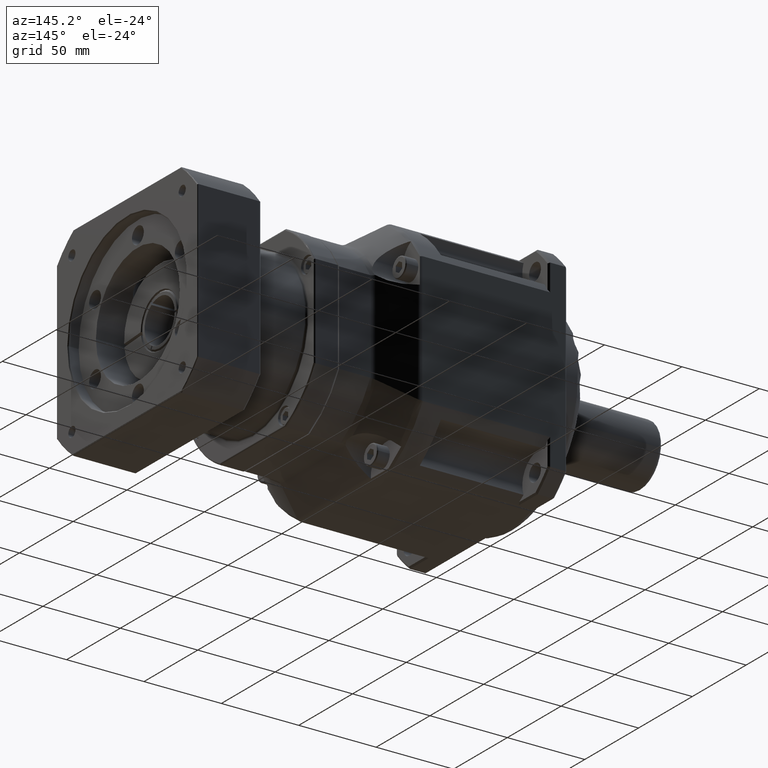
[diagram: clean part render]
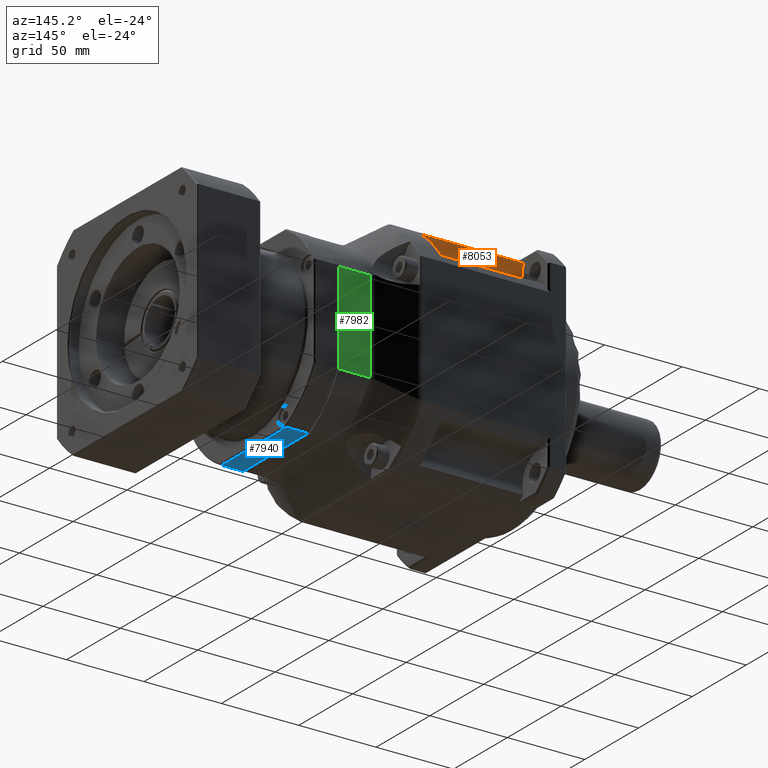
[diagram: same view with three faces highlighted in distinct colors, each labeled with its STEP entity id]
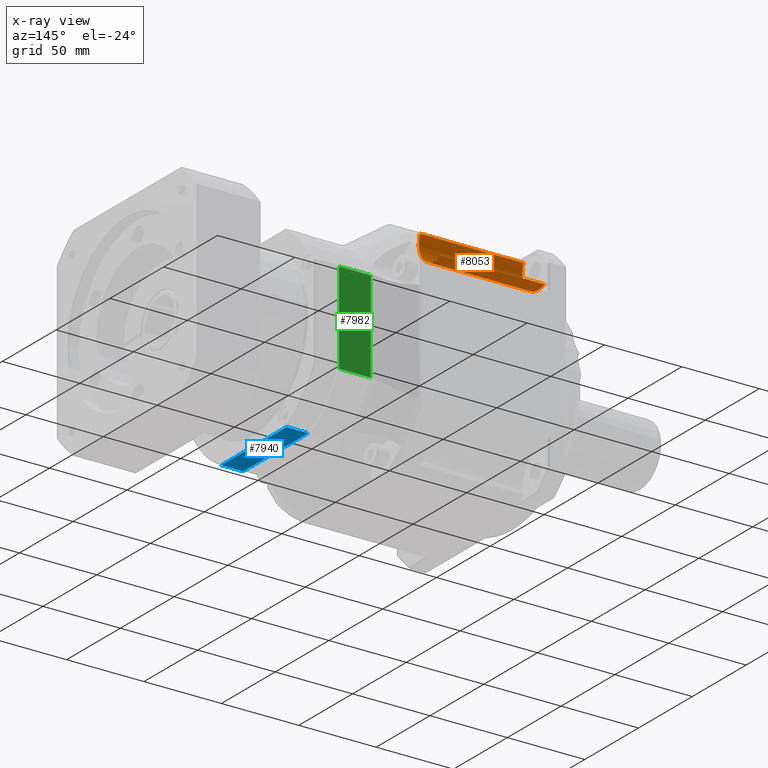
[diagram: x-ray of the same camera — body ghosted, the three highlighted faces saturated]
A machine part, auxiliary view with three faces highlighted in distinct colors.
The next image is the same camera in x-ray (body ghosted, the three faces saturated) — at least one of them is partly hidden behind the body in this view.
Their STEP definitions:

[orange] entity #8053 — the highlighted cylindrical surface (edge-blend (fillet) strip) has radius 15 mm, axis along (-1, 0, 0).
#484=LINE('',#14097,#871);
#485=LINE('',#14098,#872);
#871=VECTOR('',#10573,67.);
#872=VECTOR('',#10574,67.);
#2056=FACE_OUTER_BOUND('',#2772,.T.);
#2772=EDGE_LOOP('',(#6401,#6402,#6403,#6404));
#3257=CIRCLE('',#8732,15.);
#3290=CIRCLE('',#8835,15.);
#3746=VERTEX_POINT('',#12925);
#3747=VERTEX_POINT('',#12926);
#3891=VERTEX_POINT('',#14008);
#3892=VERTEX_POINT('',#14010);
#4575=EDGE_CURVE('',#3746,#3747,#3257,.T.);
#4784=EDGE_CURVE('',#3892,#3891,#3290,.T.);
#4812=EDGE_CURVE('',#3892,#3746,#484,.T.);
#4813=EDGE_CURVE('',#3747,#3891,#485,.T.);
#6401=ORIENTED_EDGE('',*,*,#4812,.F.);
#6402=ORIENTED_EDGE('',*,*,#4784,.T.);
#6403=ORIENTED_EDGE('',*,*,#4813,.F.);
#6404=ORIENTED_EDGE('',*,*,#4575,.F.);
#7309=CYLINDRICAL_SURFACE('',#8867,15.);
#8053=ADVANCED_FACE('',(#2056),#7309,.F.);
#8732=AXIS2_PLACEMENT_3D('',#12927,#10225,#10226);
#8835=AXIS2_PLACEMENT_3D('',#14011,#10503,#10504);
#8867=AXIS2_PLACEMENT_3D('',#14096,#10571,#10572);
#10225=DIRECTION('center_axis',(-1.,9.99200722162628E-16,9.84803175675623E-16));
#10226=DIRECTION('ref_axis',(9.99200722162629E-16,1.,1.38449300241039E-15));
#10503=DIRECTION('center_axis',(-1.,9.99200722162628E-16,9.84803175675623E-16));
#10504=DIRECTION('ref_axis',(9.99200722162629E-16,1.,1.38449300241039E-15));
#10571=DIRECTION('center_axis',(-1.,9.99200722162628E-16,9.84803175675623E-16));
#10572=DIRECTION('ref_axis',(9.99200722162629E-16,1.,1.38449300241039E-15));
#10573=DIRECTION('',(1.,-9.99200722162628E-16,-9.84803175675623E-16));
#10574=DIRECTION('',(-1.,9.99200722162628E-16,9.84803175675623E-16));
#12925=CARTESIAN_POINT('',(-171.559385272836,-82.9880561975648,-29.3159947308001));
#12926=CARTESIAN_POINT('',(-171.559385272836,-102.623473334047,-9.68057759431781));
#12927=CARTESIAN_POINT('Origin',(-171.559385272836,-88.7917146329496,-15.4842360297025));
#14008=CARTESIAN_POINT('',(-238.559385272836,-102.623473334047,-9.68057759431773));
#14010=CARTESIAN_POINT('',(-238.559385272836,-82.9880561975648,-29.3159947308));
#14011=CARTESIAN_POINT('Origin',(-238.559385272836,-88.7917146329495,-15.4842360297025));
#14096=CARTESIAN_POINT('Origin',(-171.559385272836,-88.7917146329496,-15.4842360297025));
#14097=CARTESIAN_POINT('',(-171.559385272836,-82.9880561975649,-29.3159947308001));
#14098=CARTESIAN_POINT('',(-171.559385272836,-102.623473334047,-9.68057759431781));

[blue] entity #7940 — the highlighted planar face has unit normal (-0, 0, -1).
#389=LINE('',#12603,#776);
#400=LINE('',#12747,#787);
#401=LINE('',#12751,#788);
#402=LINE('',#12752,#789);
#776=VECTOR('',#10084,60.6217782649107);
#787=VECTOR('',#10133,14.);
#788=VECTOR('',#10138,14.);
#789=VECTOR('',#10139,60.6217782649107);
#1301=PLANE('',#8691);
#1943=FACE_OUTER_BOUND('',#2624,.T.);
#2624=EDGE_LOOP('',(#5876,#5877,#5878,#5879));
#3712=VERTEX_POINT('',#12587);
#3713=VERTEX_POINT('',#12602);
#3729=VERTEX_POINT('',#12746);
#3730=VERTEX_POINT('',#12750);
#4517=EDGE_CURVE('',#3712,#3713,#389,.T.);
#4544=EDGE_CURVE('',#3729,#3713,#400,.T.);
#4546=EDGE_CURVE('',#3712,#3730,#401,.T.);
#4547=EDGE_CURVE('',#3729,#3730,#402,.T.);
#5876=ORIENTED_EDGE('',*,*,#4517,.F.);
#5877=ORIENTED_EDGE('',*,*,#4546,.T.);
#5878=ORIENTED_EDGE('',*,*,#4547,.F.);
#5879=ORIENTED_EDGE('',*,*,#4544,.T.);
#7940=ADVANCED_FACE('',(#1943),#1301,.T.);
#8691=AXIS2_PLACEMENT_3D('',#12749,#10136,#10137);
#10084=DIRECTION('',(-1.49770352855589E-21,-1.,-8.97832532957736E-16));
#10133=DIRECTION('',(-1.,1.49770352751513E-21,1.15918820918505E-15));
#10136=DIRECTION('center_axis',(-1.15918820918505E-15,8.97832532957736E-16,
-1.));
#10137=DIRECTION('ref_axis',(0.,-1.,0.));
#10138=DIRECTION('',(1.,-1.49770352751513E-21,-1.15918820918505E-15));
#10139=DIRECTION('',(1.49770352855589E-21,1.,8.97832532957736E-16));
#12587=CARTESIAN_POINT('',(-111.559385272837,-119.999115463724,-134.502525992932));
#12602=CARTESIAN_POINT('',(-111.559385272837,-180.620893728635,-134.502525992932));
#12603=CARTESIAN_POINT('',(-111.559385272837,-121.560004596179,-134.502525992932));
#12746=CARTESIAN_POINT('',(-97.5593852728365,-180.620893728635,-134.502525992932));
#12747=CARTESIAN_POINT('',(-59.5593852728365,-180.620893728635,-134.502525992932));
#12749=CARTESIAN_POINT('Origin',(-96.5593852728365,-92.8100045961792,-134.502525992932));
#12750=CARTESIAN_POINT('',(-97.5593852728365,-119.999115463724,-134.502525992932));
#12751=CARTESIAN_POINT('',(-59.5593852728365,-119.999115463724,-134.502525992932));
#12752=CARTESIAN_POINT('',(-97.5593852728365,-121.560004596179,-134.502525992932));

[green] entity #7982 — the highlighted planar face has unit normal (0, 1, 0).
#98=B_SPLINE_CURVE_WITH_KNOTS('',3,(#13223,#13224,#13225,#13226),
 .UNSPECIFIED.,.F.,.F.,(4,4),(0.,0.0355958335339166),.UNSPECIFIED.);
#106=B_SPLINE_CURVE_WITH_KNOTS('',3,(#13317,#13318,#13319,#13320),
 .UNSPECIFIED.,.F.,.F.,(4,4),(0.45519576421201,0.499903422979853),
 .UNSPECIFIED.);
#422=LINE('',#13252,#809);
#424=LINE('',#13331,#811);
#426=LINE('',#13345,#813);
#427=LINE('',#13348,#814);
#809=VECTOR('',#10265,20.1798276796559);
#811=VECTOR('',#10271,59.5958501401827);
#813=VECTOR('',#10275,20.1798276796559);
#814=VECTOR('',#10280,59.5420019817945);
#1315=PLANE('',#8749);
#1985=FACE_OUTER_BOUND('',#2677,.T.);
#2677=EDGE_LOOP('',(#6046,#6047,#6048,#6049,#6050,#6051));
#3781=VERTEX_POINT('',#13216);
#3782=VERTEX_POINT('',#13222);
#3786=VERTEX_POINT('',#13250);
#3791=VERTEX_POINT('',#13308);
#3792=VERTEX_POINT('',#13316);
#3795=VERTEX_POINT('',#13344);
#4617=EDGE_CURVE('',#3781,#3782,#98,.T.);
#4625=EDGE_CURVE('',#3781,#3786,#422,.T.);
#4631=EDGE_CURVE('',#3791,#3792,#106,.T.);
#4634=EDGE_CURVE('',#3782,#3791,#424,.F.);
#4638=EDGE_CURVE('',#3795,#3792,#426,.T.);
#4640=EDGE_CURVE('',#3795,#3786,#427,.T.);
#6046=ORIENTED_EDGE('',*,*,#4634,.F.);
#6047=ORIENTED_EDGE('',*,*,#4617,.F.);
#6048=ORIENTED_EDGE('',*,*,#4625,.T.);
#6049=ORIENTED_EDGE('',*,*,#4640,.F.);
#6050=ORIENTED_EDGE('',*,*,#4638,.T.);
#6051=ORIENTED_EDGE('',*,*,#4631,.F.);
#7982=ADVANCED_FACE('',(#1985),#1315,.T.);
#8749=AXIS2_PLACEMENT_3D('',#13347,#10278,#10279);
#10265=DIRECTION('',(1.,-1.93018708770452E-18,-1.15918820918505E-15));
#10271=DIRECTION('',(1.39946836137446E-15,-1.0044803153504E-15,1.));
#10275=DIRECTION('',(-1.,1.93018708770452E-18,1.15918820918505E-15));
#10278=DIRECTION('center_axis',(1.93018708770569E-18,1.,1.0044803153504E-15));
#10279=DIRECTION('ref_axis',(-1.4210854715202E-15,1.4210854715202E-15,-1.));
#10280=DIRECTION('',(1.15918820918505E-15,-1.0044803153504E-15,1.));
#13216=CARTESIAN_POINT('',(-132.739212952492,-92.8100045961794,-47.2315250020348));
#13222=CARTESIAN_POINT('',(-133.090875840652,-92.8100045961793,-47.2046009228766));
#13223=CARTESIAN_POINT('Ctrl Pts',(-132.739212952492,-92.8100045961802,
-47.2315250020354));
#13224=CARTESIAN_POINT('Ctrl Pts',(-132.857858582834,-92.8100045959642,
-47.2315250026054));
#13225=CARTESIAN_POINT('Ctrl Pts',(-132.975092208822,-92.8098619420951,
-47.2222661656034));
#13226=CARTESIAN_POINT('Ctrl Pts',(-133.090759174888,-92.8096614945946,
-47.2044236413971));
#13250=CARTESIAN_POINT('',(-112.559385272836,-92.8100045961793,-47.231525002035));
#13252=CARTESIAN_POINT('',(-112.559385272836,-92.8100045961793,-47.231525002035));
#13308=CARTESIAN_POINT('',(-133.090875841118,-92.8100045961793,-106.800451063059));
#13316=CARTESIAN_POINT('',(-132.739212952492,-92.8100045961794,-106.77352698383));
#13317=CARTESIAN_POINT('Ctrl Pts',(-133.090759175373,-92.8096614735087,
-106.800628364885));
#13318=CARTESIAN_POINT('Ctrl Pts',(-132.975069264907,-92.8098620285576,
-106.782782351534));
#13319=CARTESIAN_POINT('Ctrl Pts',(-132.857835989818,-92.8100045959647,
-106.773526983259));
#13320=CARTESIAN_POINT('Ctrl Pts',(-132.739212952492,-92.8100045961797,
-106.77352698383));
#13331=CARTESIAN_POINT('',(-133.090875841118,-92.8100045961794,-27.2450868343865));
#13344=CARTESIAN_POINT('',(-112.559385272836,-92.8100045961793,-106.77352698383));
#13345=CARTESIAN_POINT('',(-112.559385272836,-92.8100045961793,-106.77352698383));
#13347=CARTESIAN_POINT('Origin',(-112.559385272836,-92.8100045961794,-19.5025259929323));
#13348=CARTESIAN_POINT('',(-112.559385272837,-92.8100045961792,-134.502525992932));